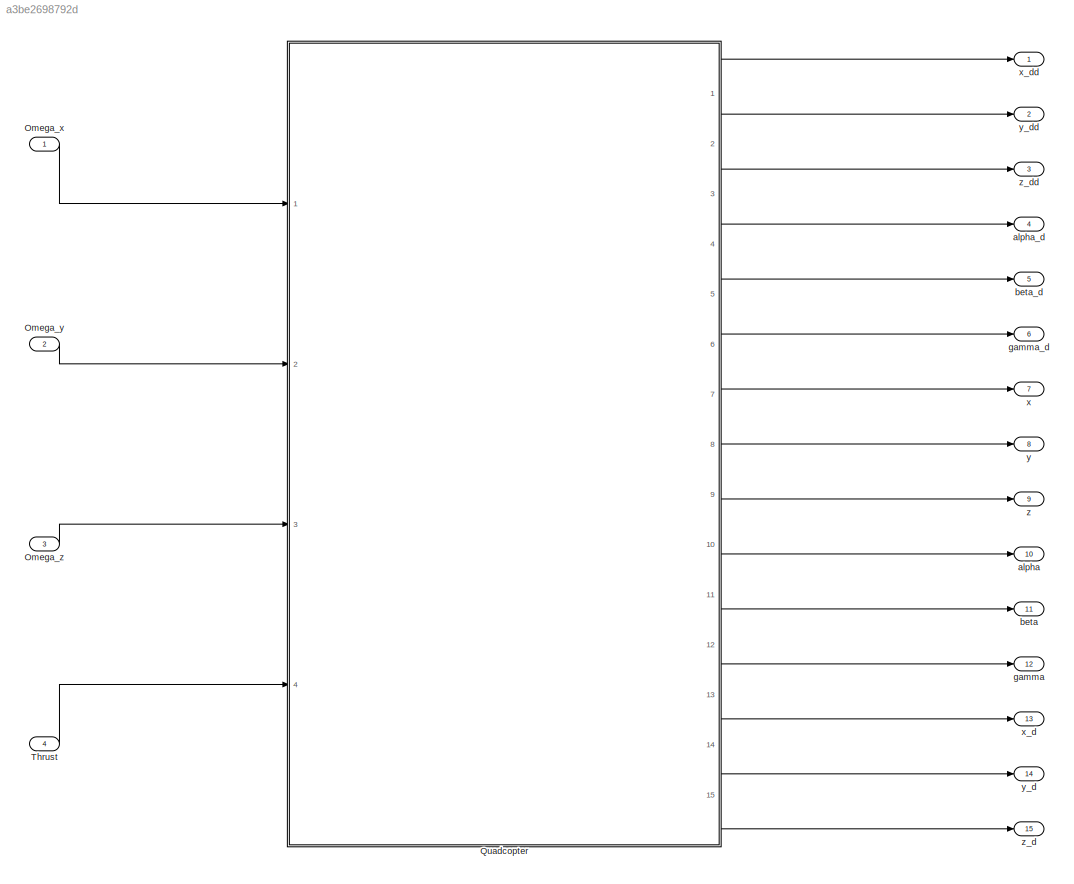
MODEL slx_a3be2698792d
KIND model
BLOCK [Inport] Omega_x
  IconDisplay = Port number
BLOCK [Inport] Omega_y
  IconDisplay = Port number
  Port = 2
BLOCK [Inport] Omega_z
  IconDisplay = Port number
  Port = 3
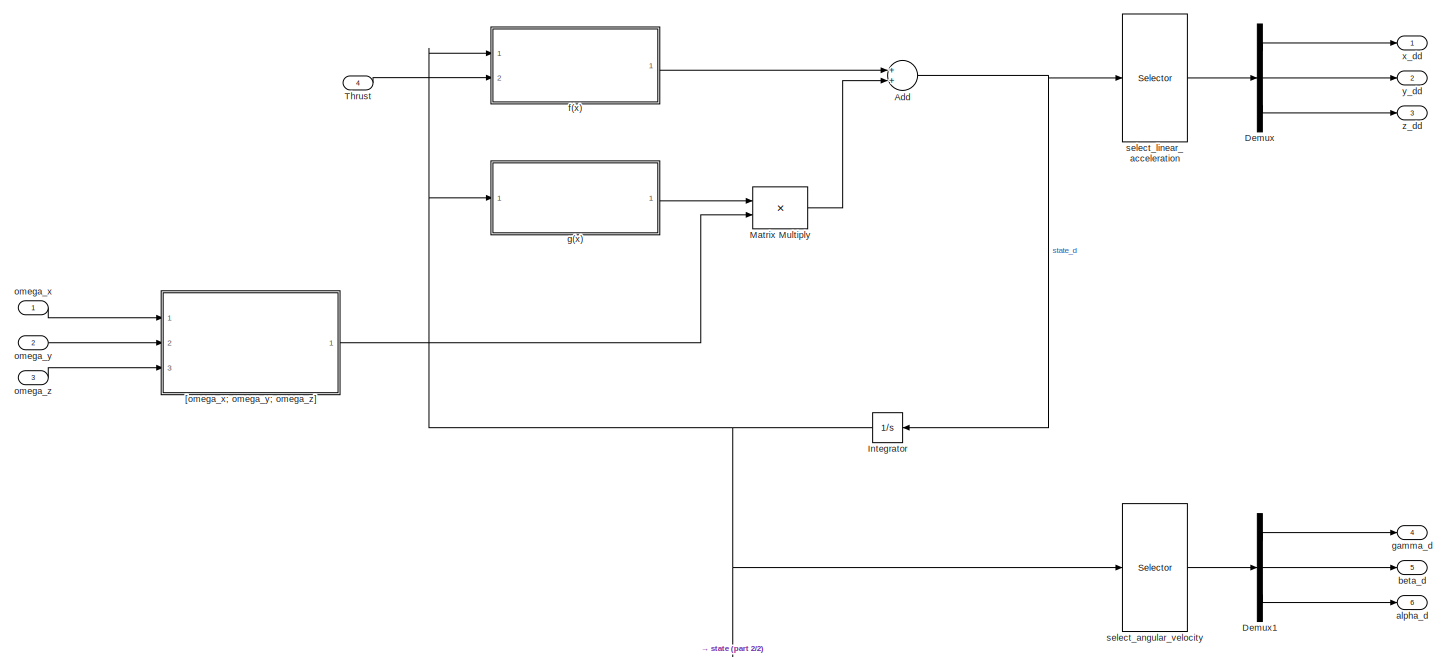
[diagram: Quadcopter - part 1/2, full width, top band]
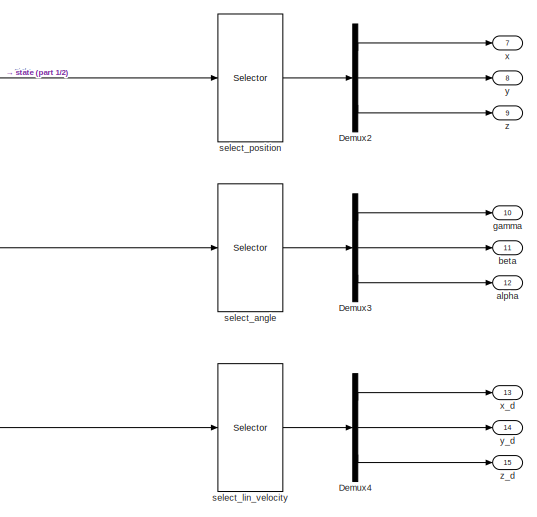
[diagram: Quadcopter - part 2/2, bottom right region]
BLOCK [SubSystem] Quadcopter
  Ports = [4, 15]
  RequestExecContextInheritance = off
BLOCK [Sum] Quadcopter/Add
  InputSameDT = off
  OutDataTypeStr = Inherit: Inherit via internal rule
  Ports = [2, 1]
  SaturateOnIntegerOverflow = off
BLOCK [Demux] Quadcopter/Demux
  DisplayOption = bar
  Outputs = [1 1 1]
  Ports = [1, 3]
BLOCK [Demux] Quadcopter/Demux1
  DisplayOption = bar
  Outputs = [1 1 1]
  Ports = [1, 3]
BLOCK [Demux] Quadcopter/Demux2
  DisplayOption = bar
  Outputs = [1 1 1]
  Ports = [1, 3]
BLOCK [Demux] Quadcopter/Demux3
  DisplayOption = bar
  Outputs = [1 1 1]
  Ports = [1, 3]
BLOCK [Demux] Quadcopter/Demux4
  DisplayOption = bar
  Outputs = [1 1 1]
  Ports = [1, 3]
BLOCK [Integrator] Quadcopter/Integrator
  Ports = [1, 1]
BLOCK [Product] Quadcopter/Matrix Multiply
  InputSameDT = off
  Multiplication = Matrix(*)
  OutDataTypeStr = Inherit: Inherit via internal rule
  Ports = [2, 1]
  RndMeth = Floor
  SaturateOnIntegerOverflow = off
BLOCK [Inport] Quadcopter/Thrust
  IconDisplay = Port number
  Port = 4
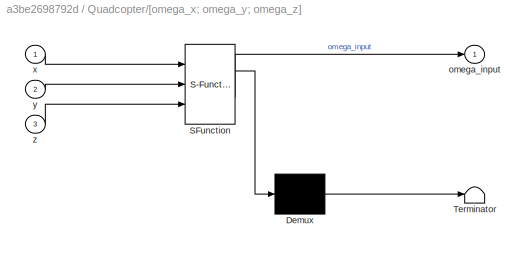
BLOCK [SubSystem] Quadcopter/[omega_x; omega_y; omega_z]
  ErrorFcn = Stateflow.Translate.translate
  PermitHierarchicalResolution = ExplicitOnly
  Ports = [3, 1]
  RequestExecContextInheritance = off
  SFBlockType = MATLAB Function
  TreatAsAtomicUnit = on
BLOCK [Demux] Quadcopter/[omega_x; omega_y; omega_z]/ Demux 
  Outputs = 1
  Ports = [1, 1]
BLOCK [S-Function] Quadcopter/[omega_x; omega_y; omega_z]/ SFunction 
  EnableBusSupport = on
  FunctionName = sf_sfun
  PortCounts = [3 2]
  Ports = [3, 2]
  Tag = Stateflow S-Function quadcopter 3
BLOCK [Terminator] Quadcopter/[omega_x; omega_y; omega_z]/ Terminator 
BLOCK [Outport] Quadcopter/[omega_x; omega_y; omega_z]/omega_input
  IconDisplay = Port number
BLOCK [Inport] Quadcopter/[omega_x; omega_y; omega_z]/x
  IconDisplay = Port number
BLOCK [Inport] Quadcopter/[omega_x; omega_y; omega_z]/y
  IconDisplay = Port number
  Port = 2
BLOCK [Inport] Quadcopter/[omega_x; omega_y; omega_z]/z
  IconDisplay = Port number
  Port = 3
BLOCK [Outport] Quadcopter/alpha
  IconDisplay = Port number
  Port = 12
BLOCK [Outport] Quadcopter/alpha_d
  IconDisplay = Port number
  Port = 6
BLOCK [Outport] Quadcopter/beta
  IconDisplay = Port number
  Port = 11
BLOCK [Outport] Quadcopter/beta_d
  IconDisplay = Port number
  Port = 5
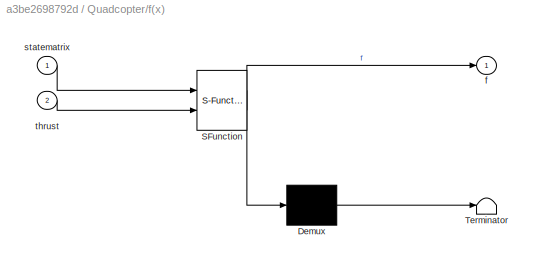
BLOCK [SubSystem] Quadcopter/f(x)
  ErrorFcn = Stateflow.Translate.translate
  PermitHierarchicalResolution = ExplicitOnly
  Ports = [2, 1]
  RequestExecContextInheritance = off
  SFBlockType = MATLAB Function
  TreatAsAtomicUnit = on
BLOCK [Demux] Quadcopter/f(x)/ Demux 
  Outputs = 1
  Ports = [1, 1]
BLOCK [S-Function] Quadcopter/f(x)/ SFunction 
  EnableBusSupport = on
  FunctionName = sf_sfun
  PortCounts = [2 2]
  Ports = [2, 2]
  Tag = Stateflow S-Function quadcopter 2
BLOCK [Terminator] Quadcopter/f(x)/ Terminator 
BLOCK [Outport] Quadcopter/f(x)/f
  IconDisplay = Port number
BLOCK [Inport] Quadcopter/f(x)/statematrix
  IconDisplay = Port number
BLOCK [Inport] Quadcopter/f(x)/thrust
  IconDisplay = Port number
  Port = 2
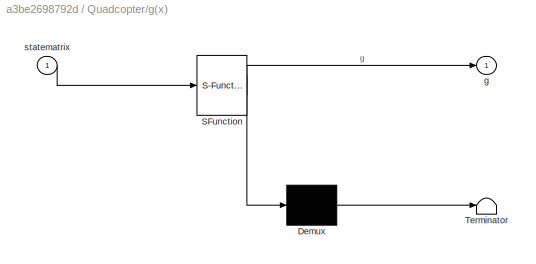
BLOCK [SubSystem] Quadcopter/g(x)
  ErrorFcn = Stateflow.Translate.translate
  PermitHierarchicalResolution = ExplicitOnly
  Ports = [1, 1]
  RequestExecContextInheritance = off
  SFBlockType = MATLAB Function
  TreatAsAtomicUnit = on
BLOCK [Demux] Quadcopter/g(x)/ Demux 
  Outputs = 1
  Ports = [1, 1]
BLOCK [S-Function] Quadcopter/g(x)/ SFunction 
  EnableBusSupport = on
  FunctionName = sf_sfun
  PortCounts = [1 2]
  Ports = [1, 2]
  Tag = Stateflow S-Function quadcopter 1
BLOCK [Terminator] Quadcopter/g(x)/ Terminator 
BLOCK [Outport] Quadcopter/g(x)/g
  IconDisplay = Port number
BLOCK [Inport] Quadcopter/g(x)/statematrix
  IconDisplay = Port number
BLOCK [Outport] Quadcopter/gamma
  IconDisplay = Port number
  Port = 10
BLOCK [Outport] Quadcopter/gamma_d
  IconDisplay = Port number
  Port = 4
BLOCK [Inport] Quadcopter/omega_x
  IconDisplay = Port number
BLOCK [Inport] Quadcopter/omega_y
  IconDisplay = Port number
  Port = 2
BLOCK [Inport] Quadcopter/omega_z
  IconDisplay = Port number
  Port = 3
BLOCK [Selector] Quadcopter/select_angle
  Indices = [7 9 11]
  InputPortWidth = 12
  Ports = [1, 1]
BLOCK [Selector] Quadcopter/select_angular_velocity
  Indices = [8 10 12]
  InputPortWidth = 12
  Ports = [1, 1]
BLOCK [Selector] Quadcopter/select_lin_velocity
  Indices = [2 4 6]
  InputPortWidth = 12
  Ports = [1, 1]
BLOCK [Selector] Quadcopter/select_linear_acceleration
  Indices = [2 4 6]
  InputPortWidth = 12
  Ports = [1, 1]
BLOCK [Selector] Quadcopter/select_position
  Indices = [1 3 5]
  InputPortWidth = 12
  Ports = [1, 1]
BLOCK [Outport] Quadcopter/x
  IconDisplay = Port number
  Port = 7
BLOCK [Outport] Quadcopter/x_d
  IconDisplay = Port number
  Port = 13
BLOCK [Outport] Quadcopter/x_dd
  IconDisplay = Port number
BLOCK [Outport] Quadcopter/y
  IconDisplay = Port number
  Port = 8
BLOCK [Outport] Quadcopter/y_d
  IconDisplay = Port number
  Port = 14
BLOCK [Outport] Quadcopter/y_dd
  IconDisplay = Port number
  Port = 2
BLOCK [Outport] Quadcopter/z
  IconDisplay = Port number
  Port = 9
BLOCK [Outport] Quadcopter/z_d
  IconDisplay = Port number
  Port = 15
BLOCK [Outport] Quadcopter/z_dd
  IconDisplay = Port number
  Port = 3
BLOCK [Inport] Thrust
  IconDisplay = Port number
  Port = 4
BLOCK [Outport] alpha
  IconDisplay = Port number
  Port = 10
BLOCK [Outport] alpha_d
  IconDisplay = Port number
  Port = 4
BLOCK [Outport] beta
  IconDisplay = Port number
  Port = 11
BLOCK [Outport] beta_d
  IconDisplay = Port number
  Port = 5
BLOCK [Outport] gamma
  IconDisplay = Port number
  Port = 12
BLOCK [Outport] gamma_d
  IconDisplay = Port number
  Port = 6
BLOCK [Outport] x
  IconDisplay = Port number
  Port = 7
BLOCK [Outport] x_d
  IconDisplay = Port number
  Port = 13
BLOCK [Outport] x_dd
  IconDisplay = Port number
BLOCK [Outport] y
  IconDisplay = Port number
  Port = 8
BLOCK [Outport] y_d
  IconDisplay = Port number
  Port = 14
BLOCK [Outport] y_dd
  IconDisplay = Port number
  Port = 2
BLOCK [Outport] z
  IconDisplay = Port number
  Port = 9
BLOCK [Outport] z_d
  IconDisplay = Port number
  Port = 15
BLOCK [Outport] z_dd
  IconDisplay = Port number
  Port = 3
LINE Omega_x:1 -> Quadcopter:1
LINE Omega_y:1 -> Quadcopter:2
LINE Omega_z:1 -> Quadcopter:3
NET Quadcopter/Add:1 -> Quadcopter/Integrator:1, Quadcopter/select_linear_acceleration:1
LINE Quadcopter/Demux1:1 -> Quadcopter/gamma_d:1
LINE Quadcopter/Demux1:2 -> Quadcopter/beta_d:1
LINE Quadcopter/Demux1:3 -> Quadcopter/alpha_d:1
LINE Quadcopter/Demux2:1 -> Quadcopter/x:1
LINE Quadcopter/Demux2:2 -> Quadcopter/y:1
LINE Quadcopter/Demux2:3 -> Quadcopter/z:1
LINE Quadcopter/Demux3:1 -> Quadcopter/gamma:1
LINE Quadcopter/Demux3:2 -> Quadcopter/beta:1
LINE Quadcopter/Demux3:3 -> Quadcopter/alpha:1
LINE Quadcopter/Demux4:1 -> Quadcopter/x_d:1
LINE Quadcopter/Demux4:2 -> Quadcopter/y_d:1
LINE Quadcopter/Demux4:3 -> Quadcopter/z_d:1
LINE Quadcopter/Demux:1 -> Quadcopter/x_dd:1
LINE Quadcopter/Demux:2 -> Quadcopter/y_dd:1
LINE Quadcopter/Demux:3 -> Quadcopter/z_dd:1
NET Quadcopter/Integrator:1 -> Quadcopter/f(x):1, Quadcopter/g(x):1, Quadcopter/select_angle:1, Quadcopter/select_angular_velocity:1, Quadcopter/select_lin_velocity:1, Quadcopter/select_position:1
LINE Quadcopter/Matrix Multiply:1 -> Quadcopter/Add:2
LINE Quadcopter/Thrust:1 -> Quadcopter/f(x):2
LINE Quadcopter/[omega_x; omega_y; omega_z]:1 -> Quadcopter/Matrix Multiply:2
LINE Quadcopter/f(x):1 -> Quadcopter/Add:1
LINE Quadcopter/g(x):1 -> Quadcopter/Matrix Multiply:1
LINE Quadcopter/omega_x:1 -> Quadcopter/[omega_x; omega_y; omega_z]:1
LINE Quadcopter/omega_y:1 -> Quadcopter/[omega_x; omega_y; omega_z]:2
LINE Quadcopter/omega_z:1 -> Quadcopter/[omega_x; omega_y; omega_z]:3
LINE Quadcopter/select_angle:1 -> Quadcopter/Demux3:1
LINE Quadcopter/select_angular_velocity:1 -> Quadcopter/Demux1:1
LINE Quadcopter/select_lin_velocity:1 -> Quadcopter/Demux4:1
LINE Quadcopter/select_linear_acceleration:1 -> Quadcopter/Demux:1
LINE Quadcopter/select_position:1 -> Quadcopter/Demux2:1
LINE Quadcopter:1 -> x_dd:1
LINE Quadcopter:10 -> alpha:1
LINE Quadcopter:11 -> beta:1
LINE Quadcopter:12 -> gamma:1
LINE Quadcopter:13 -> x_d:1
LINE Quadcopter:14 -> y_d:1
LINE Quadcopter:15 -> z_d:1
LINE Quadcopter:2 -> y_dd:1
LINE Quadcopter:3 -> z_dd:1
LINE Quadcopter:4 -> alpha_d:1
LINE Quadcopter:5 -> beta_d:1
LINE Quadcopter:6 -> gamma_d:1
LINE Quadcopter:7 -> x:1
LINE Quadcopter:8 -> y:1
LINE Quadcopter:9 -> z:1
LINE Thrust:1 -> Quadcopter:4
note: NET lines group one-source signal fan-out (src -> all destinations, sorted); 1:1 wires keep LINE
